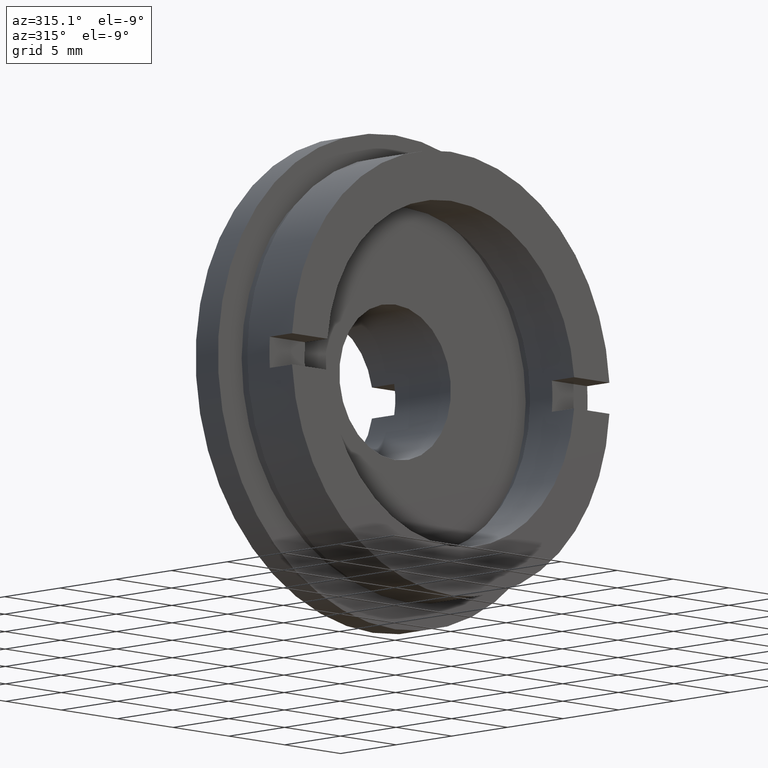
[diagram: clean part render]
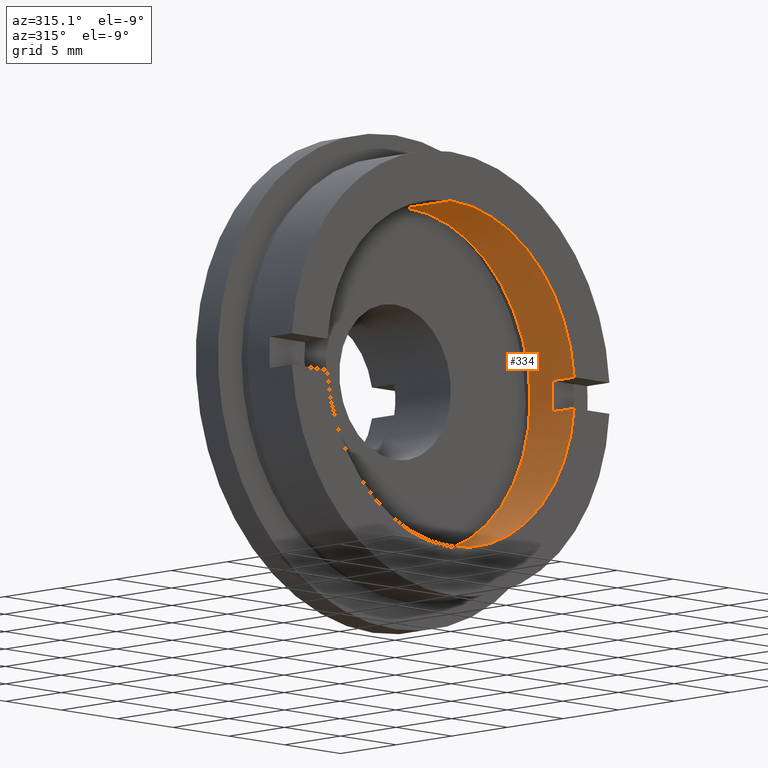
[diagram: same view with one face highlighted and labeled with its STEP entity id]
A machine part, auxiliary view. The second image highlights one B-rep face of the part: STEP entity #334.
In plain terms, the highlighted cylindrical surface (partial cylindrical patch) has radius 11.1 mm, axis along (-0, 1, -0).
Its self-contained STEP definition (entity closure, byte-faithful):
#2 = VECTOR ( 'NONE', #137, 1000.000000000000000 ) ;
#12 = DIRECTION ( 'NONE',  ( 0.0000000000000000000, 0.0000000000000000000, 1.000000000000000000 ) ) ;
#13 = EDGE_CURVE ( 'NONE', #1327, #32, #491, .T. ) ;
#23 = CARTESIAN_POINT ( 'NONE',  ( 0.0000000000000000000, 22.67749945107591400, 11.09999999999999800 ) ) ;
#24 = CIRCLE ( 'NONE', #978, 11.09999999999999800 ) ;
#32 = VERTEX_POINT ( 'NONE', #1269 ) ;
#57 = CIRCLE ( 'NONE', #945, 11.09999999999999800 ) ;
#63 = EDGE_CURVE ( 'NONE', #32, #1139, #1313, .T. ) ;
#88 = EDGE_CURVE ( 'NONE', #421, #1327, #1236, .T. ) ;
#110 = CARTESIAN_POINT ( 'NONE',  ( 11.05486318323297300, 22.67749945107591400, -0.9999999999999943400 ) ) ;
#116 = CARTESIAN_POINT ( 'NONE',  ( 0.0000000000000000000, 22.67749945107591400, 0.0000000000000000000 ) ) ;
#120 = DIRECTION ( 'NONE',  ( 0.0000000000000000000, 0.0000000000000000000, 1.000000000000000000 ) ) ;
#121 = DIRECTION ( 'NONE',  ( 0.0000000000000000000, -1.000000000000000000, 0.0000000000000000000 ) ) ;
#137 = DIRECTION ( 'NONE',  ( -0.0000000000000000000, 1.000000000000000000, -0.0000000000000000000 ) ) ;
#152 = EDGE_CURVE ( 'NONE', #1258, #808, #294, .T. ) ;
#184 = CARTESIAN_POINT ( 'NONE',  ( 0.0000000000000000000, 1.999999999999998200, 0.0000000000000000000 ) ) ;
#245 = EDGE_CURVE ( 'NONE', #1263, #1258, #57, .T. ) ;
#275 = FACE_OUTER_BOUND ( 'NONE', #516, .T. ) ;
#294 = LINE ( 'NONE', #1209, #397 ) ;
#316 = ORIENTED_EDGE ( 'NONE', *, *, #13, .F. ) ;
#334 = ADVANCED_FACE ( 'NONE', ( #275 ), #1103, .F. ) ;
#360 = VECTOR ( 'NONE', #622, 1000.000000000000000 ) ;
#397 = VECTOR ( 'NONE', #721, 1000.000000000000000 ) ;
#416 = AXIS2_PLACEMENT_3D ( 'NONE', #116, #476, #642 ) ;
#421 = VERTEX_POINT ( 'NONE', #989 ) ;
#432 = ORIENTED_EDGE ( 'NONE', *, *, #63, .F. ) ;
#448 = CARTESIAN_POINT ( 'NONE',  ( 11.05486318323297500, 0.0000000000000000000, 1.000000000000003800 ) ) ;
#457 = CARTESIAN_POINT ( 'NONE',  ( 1.359357947053561800E-015, 22.67749945107591400, -11.09999999999999800 ) ) ;
#476 = DIRECTION ( 'NONE',  ( -0.0000000000000000000, 1.000000000000000000, -0.0000000000000000000 ) ) ;
#491 = CIRCLE ( 'NONE', #1224, 11.09999999999999800 ) ;
#492 = CARTESIAN_POINT ( 'NONE',  ( 11.05486318323297500, 1.999999999999998200, 1.000000000000000200 ) ) ;
#497 = CARTESIAN_POINT ( 'NONE',  ( 0.0000000000000000000, 0.0000000000000000000, 11.09999999999999800 ) ) ;
#500 = LINE ( 'NONE', #23, #2 ) ;
#502 = CIRCLE ( 'NONE', #764, 11.09999999999999800 ) ;
#516 = EDGE_LOOP ( 'NONE', ( #432, #316, #1158, #1054, #1067, #891, #943, #987 ) ) ;
#581 = CARTESIAN_POINT ( 'NONE',  ( 0.0000000000000000000, 0.0000000000000000000, 0.0000000000000000000 ) ) ;
#597 = DIRECTION ( 'NONE',  ( 0.0000000000000000000, 0.0000000000000000000, 1.000000000000000000 ) ) ;
#616 = DIRECTION ( 'NONE',  ( 0.0000000000000000000, 1.000000000000000000, 0.0000000000000000000 ) ) ;
#622 = DIRECTION ( 'NONE',  ( -0.0000000000000000000, 1.000000000000000000, -0.0000000000000000000 ) ) ;
#637 = CARTESIAN_POINT ( 'NONE',  ( 0.0000000000000000000, 4.000000000000000000, 11.09999999999999800 ) ) ;
#642 = DIRECTION ( 'NONE',  ( 0.0000000000000000000, 0.0000000000000000000, 1.000000000000000000 ) ) ;
#713 = DIRECTION ( 'NONE',  ( -0.0000000000000000000, 1.000000000000000000, -0.0000000000000000000 ) ) ;
#721 = DIRECTION ( 'NONE',  ( -0.0000000000000000000, 1.000000000000000000, -0.0000000000000000000 ) ) ;
#764 = AXIS2_PLACEMENT_3D ( 'NONE', #184, #616, #806 ) ;
#781 = CARTESIAN_POINT ( 'NONE',  ( 11.05486318323297300, 0.0000000000000000000, -0.9999999999999943400 ) ) ;
#806 = DIRECTION ( 'NONE',  ( 0.0000000000000000000, 0.0000000000000000000, 1.000000000000000000 ) ) ;
#808 = VERTEX_POINT ( 'NONE', #492 ) ;
#848 = DIRECTION ( 'NONE',  ( -0.0000000000000000000, 1.000000000000000000, -0.0000000000000000000 ) ) ;
#855 = EDGE_CURVE ( 'NONE', #1163, #1139, #24, .T. ) ;
#891 = ORIENTED_EDGE ( 'NONE', *, *, #245, .F. ) ;
#912 = DIRECTION ( 'NONE',  ( -0.0000000000000000000, 1.000000000000000000, -0.0000000000000000000 ) ) ;
#943 = ORIENTED_EDGE ( 'NONE', *, *, #983, .T. ) ;
#945 = AXIS2_PLACEMENT_3D ( 'NONE', #1215, #912, #120 ) ;
#978 = AXIS2_PLACEMENT_3D ( 'NONE', #1095, #848, #597 ) ;
#983 = EDGE_CURVE ( 'NONE', #1263, #1163, #500, .T. ) ;
#987 = ORIENTED_EDGE ( 'NONE', *, *, #855, .T. ) ;
#989 = CARTESIAN_POINT ( 'NONE',  ( 11.05486318323297300, 1.999999999999998200, -0.9999999999999943400 ) ) ;
#1054 = ORIENTED_EDGE ( 'NONE', *, *, #1148, .F. ) ;
#1067 = ORIENTED_EDGE ( 'NONE', *, *, #152, .F. ) ;
#1095 = CARTESIAN_POINT ( 'NONE',  ( 0.0000000000000000000, 4.000000000000000000, 0.0000000000000000000 ) ) ;
#1103 = CYLINDRICAL_SURFACE ( 'NONE', #416, 11.09999999999999800 ) ;
#1133 = CARTESIAN_POINT ( 'NONE',  ( 1.359357947053561800E-015, 4.000000000000000000, -11.09999999999999800 ) ) ;
#1139 = VERTEX_POINT ( 'NONE', #1133 ) ;
#1148 = EDGE_CURVE ( 'NONE', #808, #421, #502, .T. ) ;
#1158 = ORIENTED_EDGE ( 'NONE', *, *, #88, .F. ) ;
#1163 = VERTEX_POINT ( 'NONE', #637 ) ;
#1170 = VECTOR ( 'NONE', #121, 1000.000000000000000 ) ;
#1209 = CARTESIAN_POINT ( 'NONE',  ( 11.05486318323297500, 22.67749945107591400, 1.000000000000003800 ) ) ;
#1215 = CARTESIAN_POINT ( 'NONE',  ( 0.0000000000000000000, 0.0000000000000000000, 0.0000000000000000000 ) ) ;
#1224 = AXIS2_PLACEMENT_3D ( 'NONE', #581, #713, #12 ) ;
#1236 = LINE ( 'NONE', #110, #1170 ) ;
#1258 = VERTEX_POINT ( 'NONE', #448 ) ;
#1263 = VERTEX_POINT ( 'NONE', #497 ) ;
#1269 = CARTESIAN_POINT ( 'NONE',  ( 1.359357947053561800E-015, 0.0000000000000000000, -11.09999999999999800 ) ) ;
#1313 = LINE ( 'NONE', #457, #360 ) ;
#1327 = VERTEX_POINT ( 'NONE', #781 ) ;